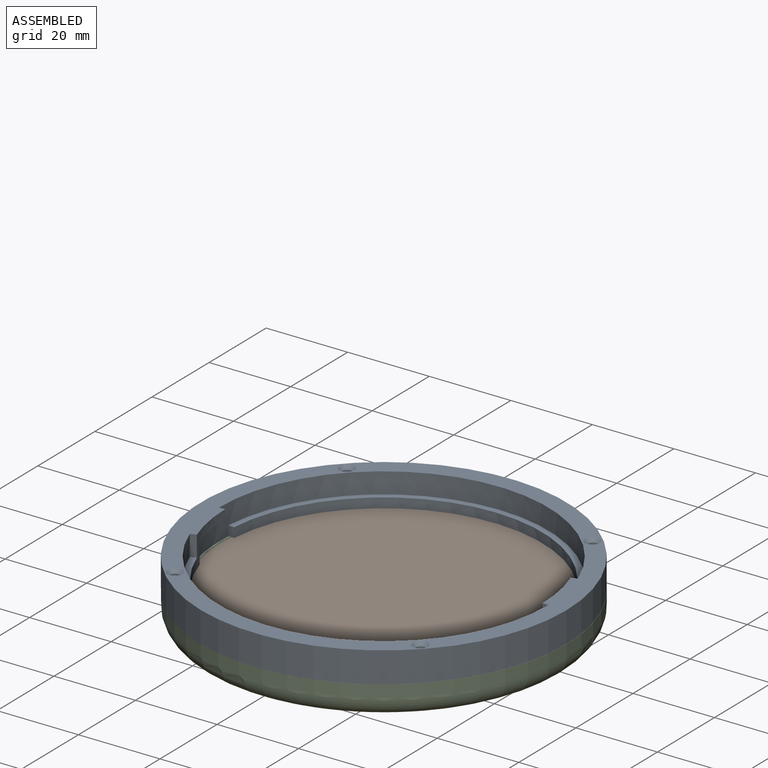
[diagram: assembled view]
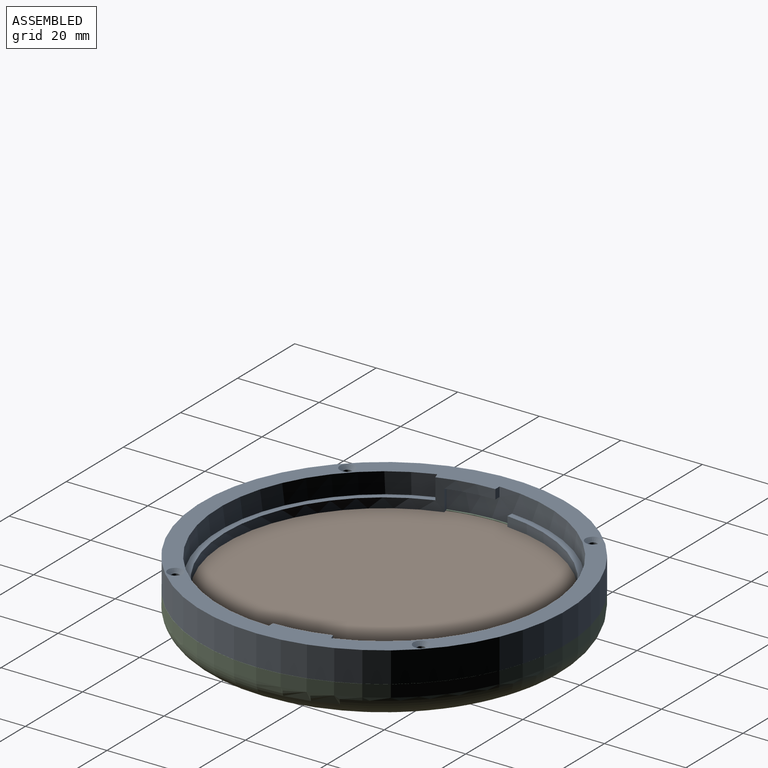
[diagram: assembled view, second angle]
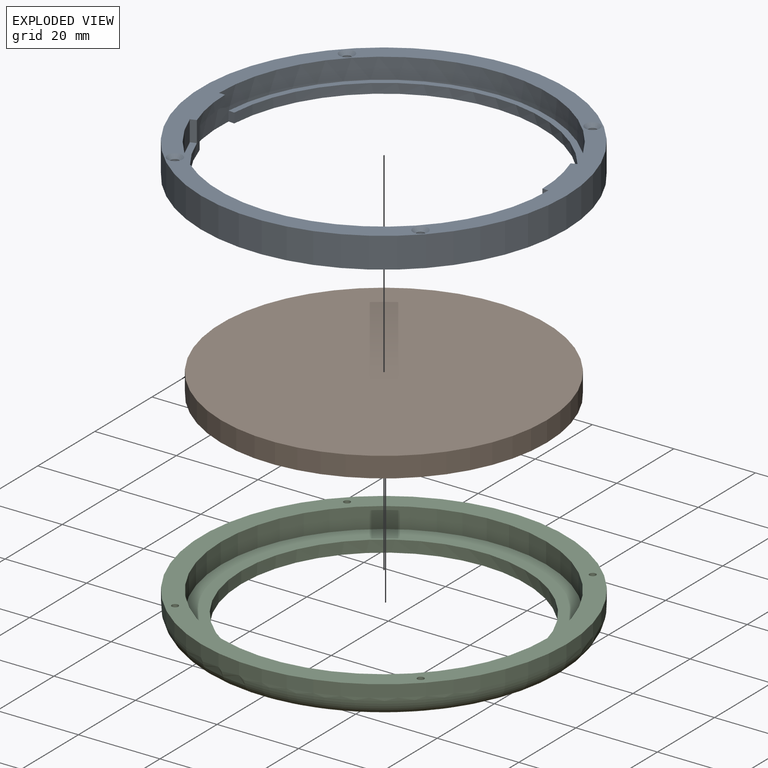
[diagram: exploded view]
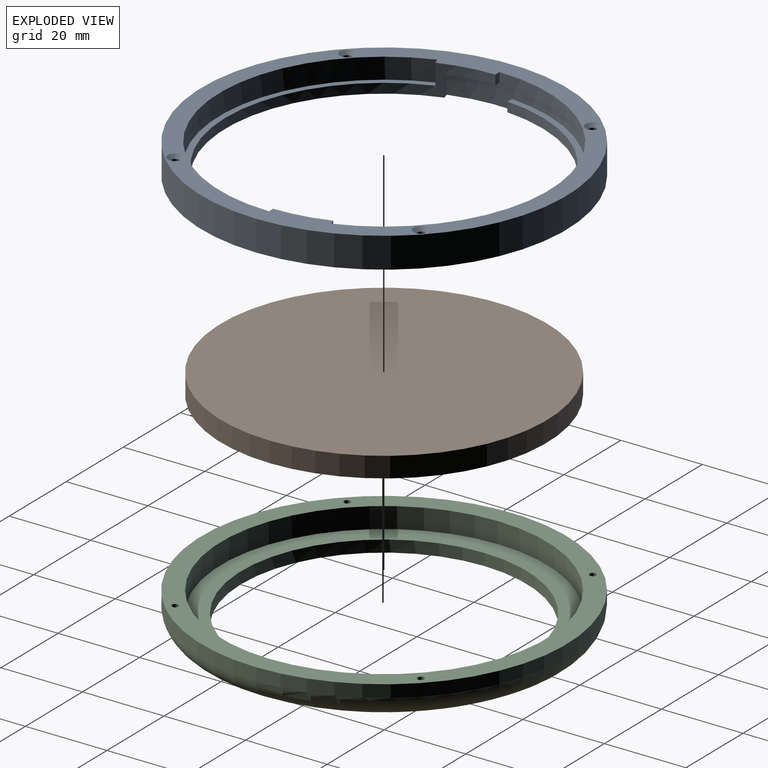
[diagram: exploded view, second angle]
ASSEMBLY  parts=3 mates=2
PART A: 27 faces, bbox 89.6x89.6x7.5 mm
  f0: cylinder r=38.93mm len=77.73mm, axis (0,0,-1), area 294.7mm2, adj f2,f4,f7,f8,f11,f14,f15,f16
  f1: plane 2.3x1.48mm, normal (0,1,0), area 3.4mm2, adj f3,f7,f12,f18
  f2: plane 78.31x37.35mm, normal (0,0,1), area 159.1mm2, adj f0,f11,f12,f16
  f3: cylinder r=38.93mm len=77.8mm, axis (0,0,-1), area 297.3mm2, adj f1,f5,f7,f8,f9,f13,f17,f18
  f4: plane 2.3x1.48mm, normal (0,-1,0), area 3.4mm2, adj f0,f7,f10,f15
  f5: plane 78.38x38.44mm, normal (0,0,1), area 160.7mm2, adj f3,f9,f10,f13
  f6: cylinder r=44.8mm len=89.6mm, axis (0,0,-1), area 2111.2mm2, adj f7,f8
  f7: plane 89.6x89.6mm, normal (0,0,1), area 1174.9mm2, adj f0,f1,f3,f4,f6,f9,f10,f11
  f8: plane 89.6x89.6mm, normal (0,0,-1), area 1490.7mm2, adj f0,f3,f6,f10,f12,f13,f14,f16
  f9: plane 5.1x1.39mm, normal (0.34,-0.94,0), area 7.5mm2, adj f3,f5,f7,f10
  f10: cylinder r=40.4mm len=78.44mm, axis (0,0,1), area 643.3mm2, adj f4,f5,f7,f8,f9,f13,f14,f15
  f11: plane 5.1x1.39mm, normal (-0.34,0.94,0), area 7.5mm2, adj f0,f2,f7,f12
  f12: cylinder r=40.4mm len=78.44mm, axis (0,0,1), area 646mm2, adj f1,f2,f7,f8,f11,f16,f17,f18
  f13: plane 2.4x1.47mm, normal (0.05,1,0), area 3.5mm2, adj f3,f5,f8,f10
  f14: plane 5.2x1.41mm, normal (0.29,-0.96,0), area 7.7mm2, adj f0,f8,f10,f15
  f15: plane 11.74x3.16mm, normal (0,0,-1), area 17.3mm2, adj f0,f4,f10,f14
  f16: plane 2.4x1.47mm, normal (-0.08,-1,0), area 3.5mm2, adj f0,f2,f8,f12
  f17: plane 5.2x1.41mm, normal (-0.29,0.96,0), area 7.7mm2, adj f3,f8,f12,f18
  f18: plane 11.74x3.16mm, normal (0,0,-1), area 17.3mm2, adj f1,f3,f12,f17
  f19: cylinder r=1mm len=6.65mm, axis (0,0,1), area 41.8mm2, adj f8,f20
  f20: cone r=1mm half-angle=45deg, axis (0,0,1), area 10.8mm2, adj f7,f19
  f21: cylinder r=1mm len=6.65mm, axis (0,0,1), area 41.8mm2, adj f8,f22
  f22: cone r=1mm half-angle=45deg, axis (0,0,1), area 10.8mm2, adj f7,f21
  f23: cylinder r=1mm len=6.65mm, axis (0,0,1), area 41.8mm2, adj f8,f24
  f24: cone r=1mm half-angle=45deg, axis (0,0,1), area 10.8mm2, adj f7,f23
  f25: cylinder r=1mm len=6.65mm, axis (0,0,1), area 41.8mm2, adj f8,f26
  f26: cone r=1mm half-angle=45deg, axis (0,0,1), area 10.8mm2, adj f7,f25
PART B: 3 faces, bbox 80x80x5 mm
  f0: cylinder r=40mm len=80mm, axis (0,0,-1), area 1256.6mm2, adj f1,f2
  f1: plane 80x80mm, normal (0,0,1), area 5026.5mm2, adj f0
  f2: plane 80x80mm, normal (0,0,-1), area 5026.5mm2, adj f0
PART C: 15 faces, bbox 97x97x8 mm
  f0: cylinder r=35mm len=70mm, axis (0,0,-1), area 637.7mm2, adj f2,f6
  f1: cylinder r=44.8mm len=89.6mm, axis (0,0,-1), area 844.5mm2, adj f3,f4
  f2: plane 79.6x79.6mm, normal (0,0,1), area 1128mm2, adj f0,f4
  f3: plane 89.6x89.6mm, normal (0,0,-1), area 1270.7mm2, adj f1,f5,f8,f10,f12,f14
  f4: torus R=39.8mm, axis (0,0,1), area 2121.1mm2, adj f1,f2
  f5: cylinder r=40mm len=80mm, axis (0,0,-1), area 1281.8mm2, adj f3,f6
  f6: plane 80x80mm, normal (0,0,-1), area 1178.1mm2, adj f0,f5
  f7: cone r=0mm half-angle=59deg, axis (0,0,-1), area 2.3mm2, adj f8
  f8: cylinder r=0.8mm len=5.4mm, axis (0,0,-1), area 27.1mm2, adj f3,f7
  f9: cone r=0mm half-angle=59deg, axis (0,0,-1), area 2.3mm2, adj f10
  f10: cylinder r=0.8mm len=5.4mm, axis (0,0,-1), area 27.1mm2, adj f3,f9
  f11: cone r=0mm half-angle=59deg, axis (0,0,-1), area 2.3mm2, adj f12
  f12: cylinder r=0.8mm len=5.4mm, axis (0,0,-1), area 27.1mm2, adj f3,f11
  f13: cone r=0mm half-angle=59deg, axis (0,0,-1), area 2.3mm2, adj f14
  f14: cylinder r=0.8mm len=5.4mm, axis (0,0,-1), area 27.1mm2, adj f3,f13
PLACE A t=(3,-5.9,-15.2)mm fixed
PLACE B t=(3.04,-5.91,-20.3)mm
PLACE C rot(axis=(1,0,0),180deg) t=(3.04,-5.91,-15.2)mm
MATE fastened C.f5 <-> B.f0  axis (0,0,1) through (3.04,-5.91,-20.3)mm
MATE cylindrical A.f8 <-> C.f1  axis (0,0,-1) through (3.04,-5.91,-15.2)mm
